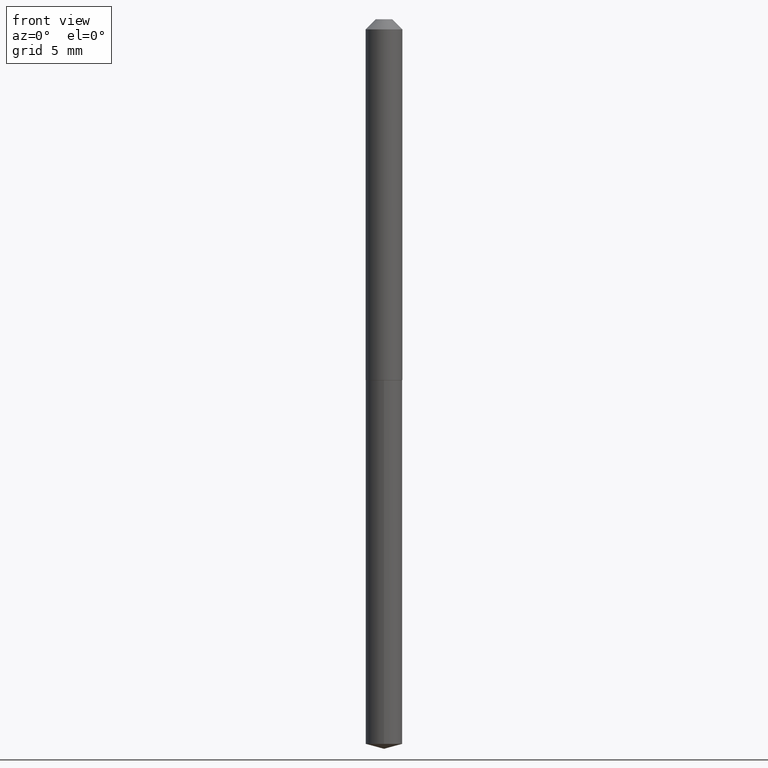
[diagram: clean part render]
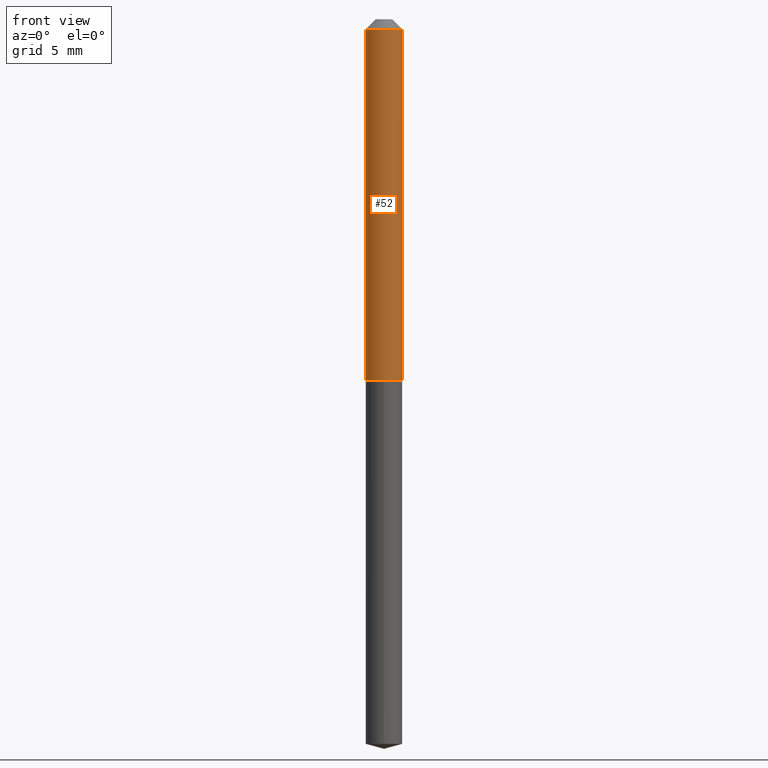
[diagram: same view with one face highlighted and labeled with its STEP entity id]
A machine part, front view. The second image highlights one B-rep face of the part: STEP entity #52.
In plain terms, the highlighted cylindrical surface (edge-blend (fillet) strip) has radius 1.4351 mm, axis along (-0, 0, 1).
Its self-contained STEP definition (entity closure, byte-faithful):
#4 = EDGE_CURVE ( 'NONE', #250, #380, #191, .T. ) ;
#9 = DIRECTION ( 'NONE',  ( -2.445468806185136597E-29, 3.491481338843145583E-15, 1.000000000000000000 ) ) ;
#15 = VECTOR ( 'NONE', #110, 39.37007874015748143 ) ;
#32 = ORIENTED_EDGE ( 'NONE', *, *, #111, .F. ) ;
#52 = ADVANCED_FACE ( 'NONE', ( #225 ), #134, .T. ) ;
#67 = ORIENTED_EDGE ( 'NONE', *, *, #332, .F. ) ;
#69 = CARTESIAN_POINT ( 'NONE',  ( 2.720584046880964240E-29, -3.884272989462999268E-15, -1.112500000000000044 ) ) ;
#71 = DIRECTION ( 'NONE',  ( 1.000000000000000000, -6.982962677686265133E-15, 0.000000000000000000 ) ) ;
#98 = CARTESIAN_POINT ( 'NONE',  ( 7.642090019328602662E-31, -1.091087918388490267E-16, -0.03125000000000020817 ) ) ;
#107 = DIRECTION ( 'NONE',  ( -2.445468806185136597E-29, 3.491481338843145583E-15, 1.000000000000000000 ) ) ;
#110 = DIRECTION ( 'NONE',  ( -2.445468806185136877E-29, 3.491481338843145188E-15, 1.000000000000000000 ) ) ;
#111 = EDGE_CURVE ( 'NONE', #342, #370, #353, .T. ) ;
#120 = AXIS2_PLACEMENT_3D ( 'NONE', #69, #9, #71 ) ;
#134 = CYLINDRICAL_SURFACE ( 'NONE', #307, 0.05650000000000006406 ) ;
#136 = CARTESIAN_POINT ( 'NONE',  ( 0.000000000000000000, 0.000000000000000000, 0.000000000000000000 ) ) ;
#139 = ORIENTED_EDGE ( 'NONE', *, *, #317, .T. ) ;
#166 = CIRCLE ( 'NONE', #120, 0.05650000000000013345 ) ;
#191 = LINE ( 'NONE', #292, #15 ) ;
#192 = CARTESIAN_POINT ( 'NONE',  ( -0.05650000000000000161, -1.595234244946466237E-15, -0.03125000000000020817 ) ) ;
#193 = EDGE_LOOP ( 'NONE', ( #32, #139, #278, #67 ) ) ;
#196 = AXIS2_PLACEMENT_3D ( 'NONE', #98, #220, #335 ) ;
#216 = CIRCLE ( 'NONE', #196, 0.05650000000000000161 ) ;
#220 = DIRECTION ( 'NONE',  ( -2.445468806185136597E-29, 3.491481338843145583E-15, 1.000000000000000000 ) ) ;
#225 = FACE_OUTER_BOUND ( 'NONE', #193, .T. ) ;
#240 = DIRECTION ( 'NONE',  ( -2.445468806185136877E-29, 3.491481338843145188E-15, 1.000000000000000000 ) ) ;
#244 = CARTESIAN_POINT ( 'NONE',  ( -0.05650000000000013345, -3.482816343758541518E-15, -1.112500000000000044 ) ) ;
#250 = VERTEX_POINT ( 'NONE', #356 ) ;
#254 = CARTESIAN_POINT ( 'NONE',  ( 0.05650000000000000161, -5.036461831281230081E-16, -0.03125000000000020817 ) ) ;
#278 = ORIENTED_EDGE ( 'NONE', *, *, #4, .T. ) ;
#292 = CARTESIAN_POINT ( 'NONE',  ( 0.05650000000000006406, -3.945373912892745484E-16, 2.755039878324706638E-30 ) ) ;
#297 = CARTESIAN_POINT ( 'NONE',  ( -0.05650000000000006406, 4.014566457044570602E-16, -2.779198325994025135E-30 ) ) ;
#307 = AXIS2_PLACEMENT_3D ( 'NONE', #136, #107, #339 ) ;
#317 = EDGE_CURVE ( 'NONE', #342, #250, #166, .T. ) ;
#332 = EDGE_CURVE ( 'NONE', #370, #380, #216, .T. ) ;
#335 = DIRECTION ( 'NONE',  ( 1.000000000000000000, -6.982962677686265922E-15, 0.000000000000000000 ) ) ;
#338 = VECTOR ( 'NONE', #240, 39.37007874015748143 ) ;
#339 = DIRECTION ( 'NONE',  ( 1.000000000000000000, -6.982962677686267499E-15, 4.876176775795935232E-29 ) ) ;
#342 = VERTEX_POINT ( 'NONE', #244 ) ;
#353 = LINE ( 'NONE', #297, #338 ) ;
#356 = CARTESIAN_POINT ( 'NONE',  ( 0.05650000000000013345, -4.278810380752274063E-15, -1.112500000000000044 ) ) ;
#370 = VERTEX_POINT ( 'NONE', #192 ) ;
#380 = VERTEX_POINT ( 'NONE', #254 ) ;